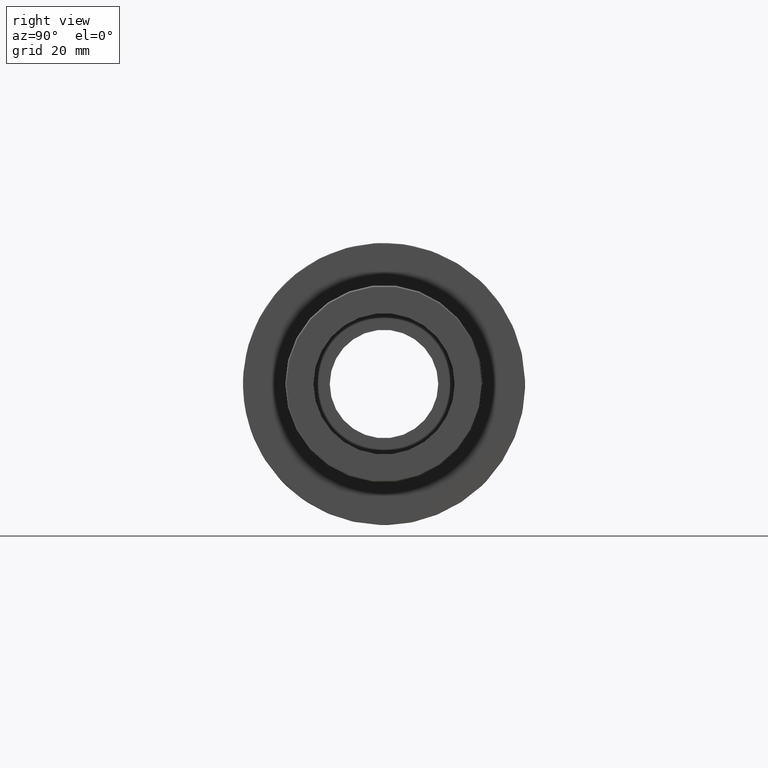
[diagram: clean part render]
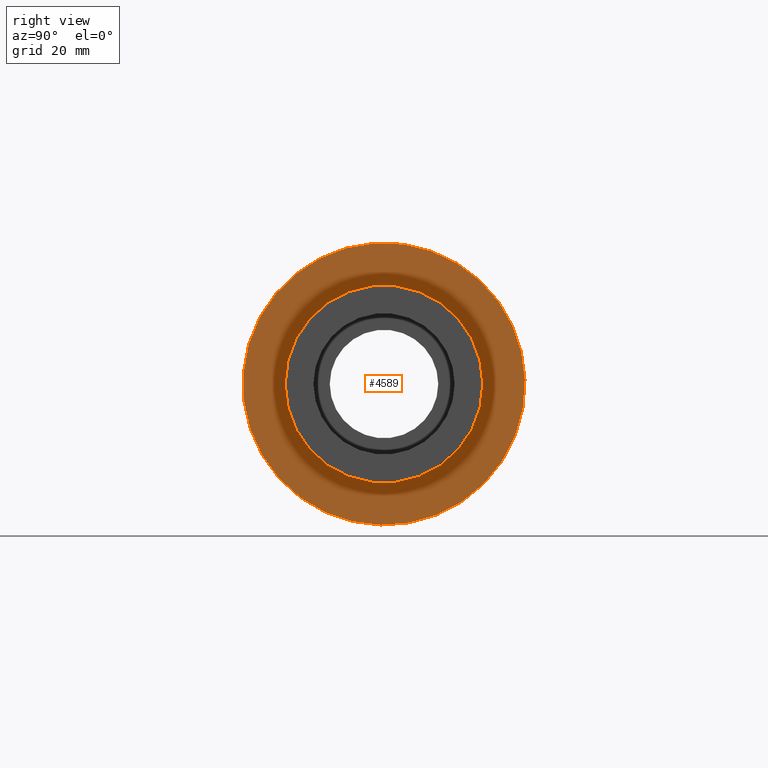
[diagram: same view with one face highlighted and labeled with its STEP entity id]
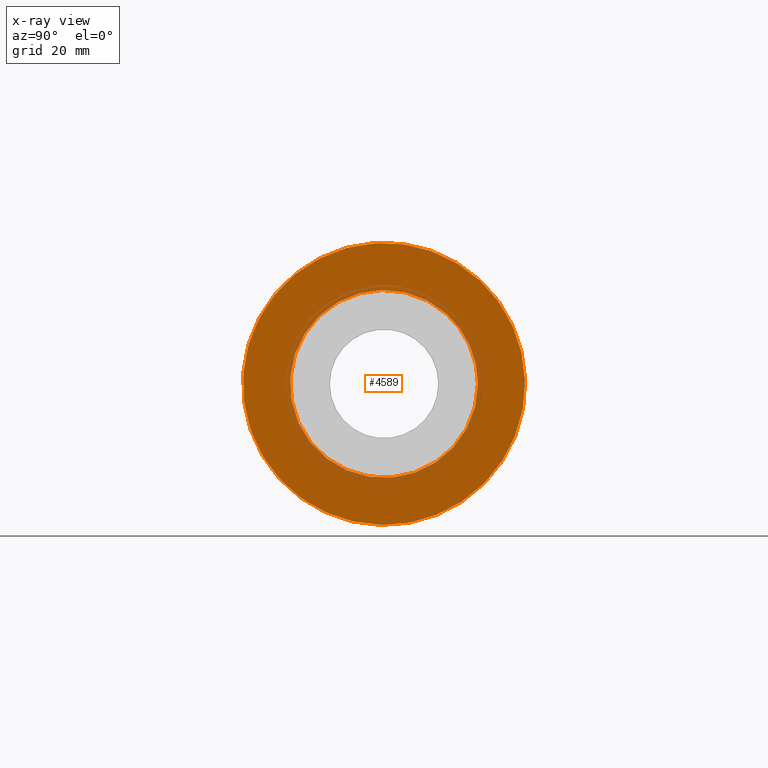
[diagram: x-ray of the same camera — body ghosted, the highlighted face saturated]
A machine part, right view. The second image highlights one B-rep face of the part: STEP entity #4589.
The next image is the same camera in x-ray: the body ghosted, the highlighted face saturated — about 9% of this face is hidden behind the body in this view.
In plain terms, the highlighted planar face has unit normal (1, 0, 0).
Its self-contained STEP definition (entity closure, byte-faithful):
#68=FACE_BOUND('',#1360,.T.);
#144=PLANE('',#5062);
#1074=FACE_OUTER_BOUND('',#1359,.T.);
#1359=EDGE_LOOP('',(#4208));
#1360=EDGE_LOOP('',(#4209));
#1634=CIRCLE('',#4782,30.25);
#1792=CIRCLE('',#5063,20.143515);
#1994=VERTEX_POINT('',#7352);
#2255=VERTEX_POINT('',#9459);
#2508=EDGE_CURVE('',#1994,#1994,#1634,.T.);
#2929=EDGE_CURVE('',#2255,#2255,#1792,.T.);
#4208=ORIENTED_EDGE('',*,*,#2508,.T.);
#4209=ORIENTED_EDGE('',*,*,#2929,.F.);
#4589=ADVANCED_FACE('',(#1074,#68),#144,.T.);
#4782=AXIS2_PLACEMENT_3D('',#7353,#5541,#5542);
#5062=AXIS2_PLACEMENT_3D('',#9458,#6271,#6272);
#5063=AXIS2_PLACEMENT_3D('',#9460,#6273,#6274);
#5541=DIRECTION('center_axis',(1.,0.,0.));
#5542=DIRECTION('ref_axis',(0.,0.,-1.));
#6271=DIRECTION('center_axis',(1.,0.,0.));
#6272=DIRECTION('ref_axis',(0.,0.,-1.));
#6273=DIRECTION('center_axis',(1.,0.,0.));
#6274=DIRECTION('ref_axis',(0.,0.,-1.));
#7352=CARTESIAN_POINT('',(-44.0525,20.5172620912777,22.2284605017491));
#7353=CARTESIAN_POINT('Origin',(-44.0525,0.,0.));
#9458=CARTESIAN_POINT('Origin',(-44.0525,20.143515,0.));
#9459=CARTESIAN_POINT('',(-44.0525,13.3622961480721,15.0734945585435));
#9460=CARTESIAN_POINT('Origin',(-44.0525,0.,0.));